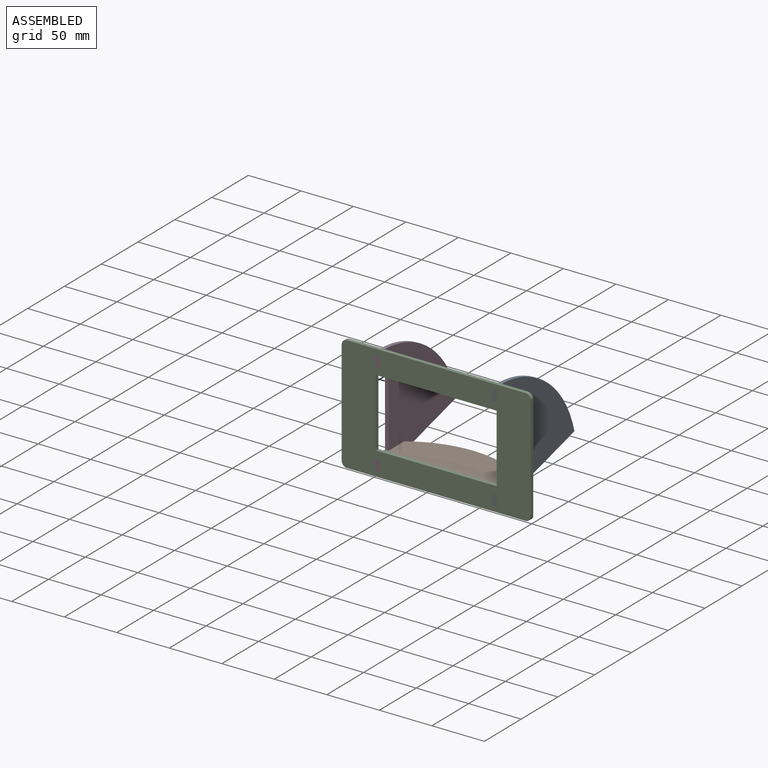
[diagram: assembled view]
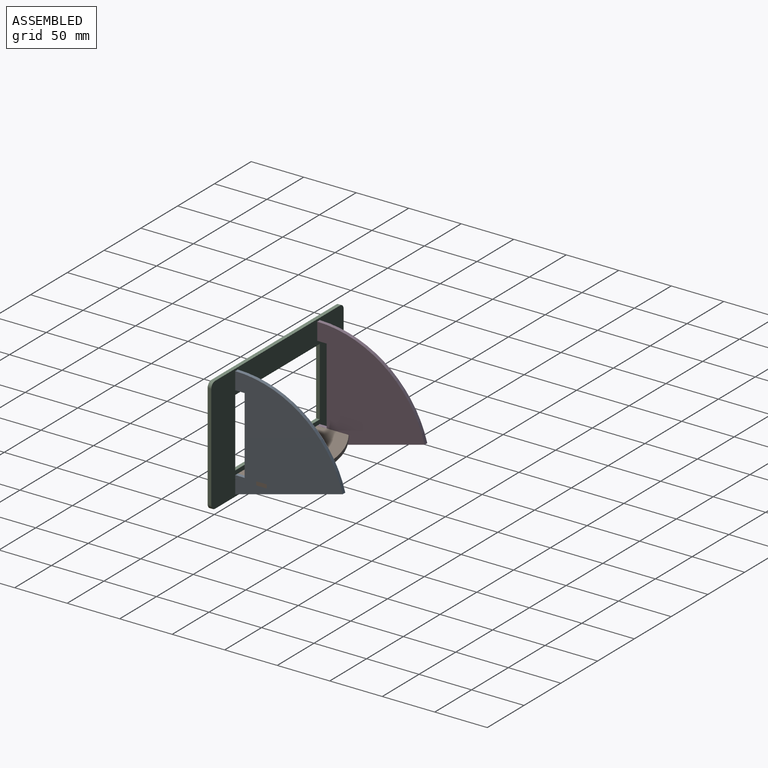
[diagram: assembled view, second angle]
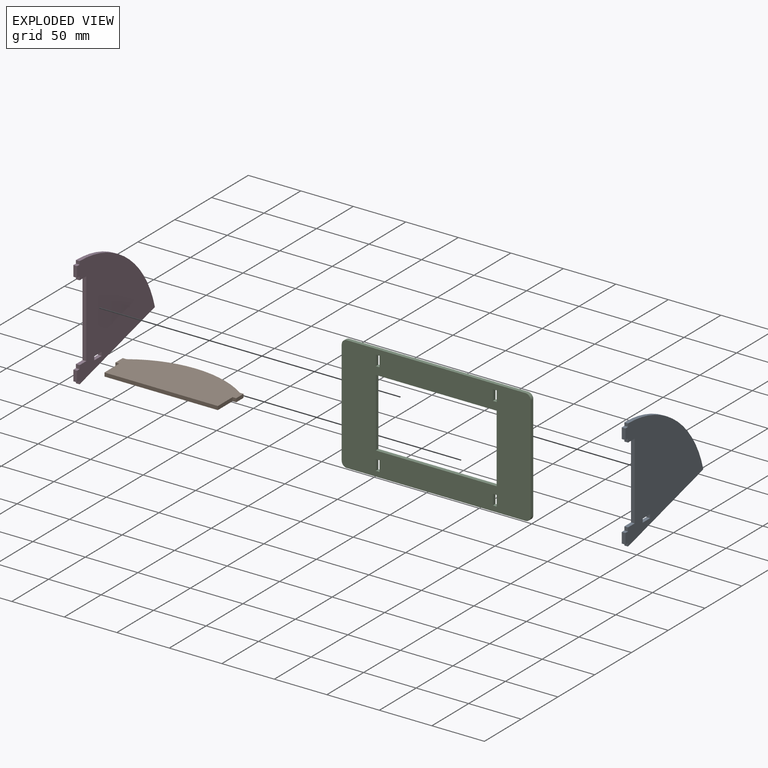
[diagram: exploded view]
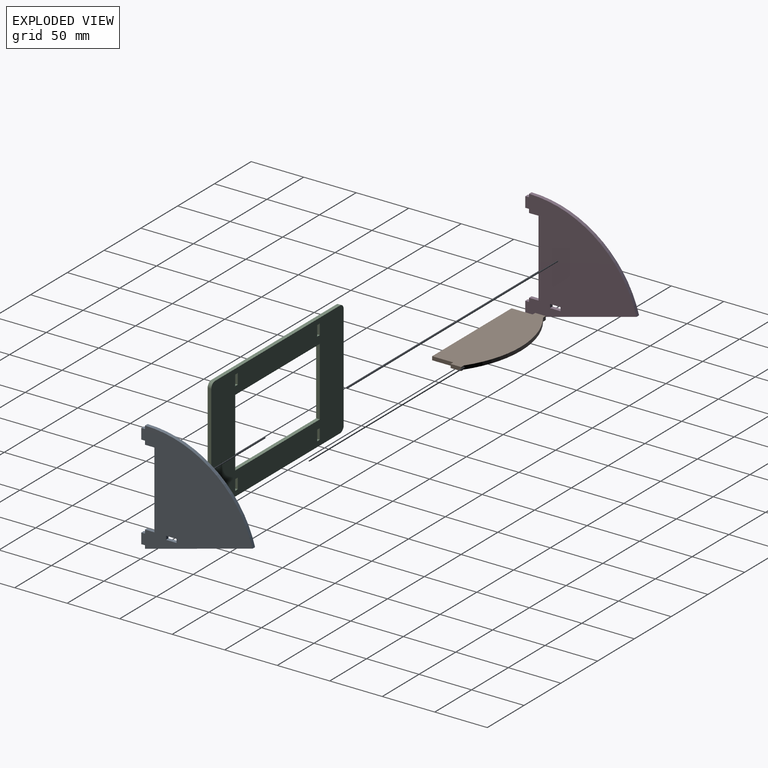
[diagram: exploded view, second angle]
ASSEMBLY  parts=4 mates=3
PART A: 21 faces, bbox 3.5x105.9x106 mm
  f0: plane 9x3.5mm, normal (0,0,-1), area 31.5mm2, adj f1,f18,f19,f20
  f1: plane 73x3.5mm, normal (0,-1,0), area 255.5mm2, adj f0,f2,f19,f20
  f2: plane 9x3.5mm, normal (0,0,1), area 31.5mm2, adj f1,f3,f19,f20
  f3: plane 3.5x3.5mm, normal (0,-1,0), area 12.3mm2, adj f2,f4,f19,f20
  f4: plane 3.5x3.5mm, normal (0,0,1), area 12.2mm2, adj f3,f5,f19,f20
  f5: plane 10x3.5mm, normal (0,-1,0), area 35mm2, adj f4,f6,f19,f20
  f6: plane 3.5x3.5mm, normal (0,0,-1), area 12.2mm2, adj f5,f7,f19,f20
  f7: plane 3.5x3mm, normal (0,-1,0), area 10.5mm2, adj f6,f8,f19,f20
  f8: plane 102.39x27.44mm, normal (0,0.26,-0.97), area 371mm2, adj f7,f9,f19,f20
  f9: cylinder r=106mm len=102.39mm, axis (-1,0,0), area 485.6mm2, adj f8,f10,f19,f20
  f10: plane 3.5x3mm, normal (0,-1,0), area 10.5mm2, adj f9,f11,f19,f20
  f11: plane 3.5x3.5mm, normal (0,0,1), area 12.2mm2, adj f10,f12,f19,f20
  f12: plane 10x3.5mm, normal (0,-1,0), area 35mm2, adj f11,f13,f19,f20
  f13: plane 3.5x3.5mm, normal (0,0,-1), area 12.2mm2, adj f12,f18,f19,f20
  f14: plane 3.5x3.5mm, normal (0,1,0), area 12.3mm2, adj f15,f17,f19,f20
  f15: plane 10x3.5mm, normal (0,0,-1), area 35mm2, adj f14,f16,f19,f20
  f16: plane 3.5x3.5mm, normal (0,-1,0), area 12.3mm2, adj f15,f17,f19,f20
  f17: plane 10x3.5mm, normal (0,0,1), area 35mm2, adj f14,f16,f19,f20
  f18: plane 3.5x3.5mm, normal (0,-1,0), area 12.2mm2, adj f0,f13,f19,f20
  f19: plane 106x105.89mm, normal (1,0,0), area 6731.9mm2, adj f0,f1,f2,f3,f4,f5,f6,f7
  f20: plane 106x105.89mm, normal (-1,0,0), area 6731.9mm2, adj f0,f1,f2,f3,f4,f5,f6,f7
PART B: 12 faces, bbox 115x46.8x3.5 mm
  f0: plane 10x3.5mm, normal (1,0,0), area 35mm2, adj f1,f9,f10,f11
  f1: plane 3.5x3.5mm, normal (0,1,0), area 12.3mm2, adj f0,f2,f10,f11
  f2: cylinder r=95.31mm len=107.95mm, axis (0,0,-1), area 401.6mm2, adj f1,f3,f10,f11
  f3: plane 3.55x3.5mm, normal (0,1,0), area 12.4mm2, adj f2,f4,f10,f11
  f4: plane 10x3.5mm, normal (-1,0,0), area 35mm2, adj f3,f5,f10,f11
  f5: plane 3.5x3.5mm, normal (0,-1,0), area 12.2mm2, adj f4,f6,f10,f11
  f6: plane 20x3.5mm, normal (-1,0,0), area 70mm2, adj f5,f7,f10,f11
  f7: plane 108x3.5mm, normal (0,-1,0), area 378mm2, adj f6,f8,f10,f11
  f8: plane 20x3.5mm, normal (1,0,0), area 70mm2, adj f7,f9,f10,f11
  f9: plane 3.5x3.5mm, normal (0,-1,0), area 12.3mm2, adj f0,f8,f10,f11
  f10: plane 115x46.76mm, normal (0,0,1), area 4538.7mm2, adj f0,f1,f2,f3,f4,f5,f6,f7
  f11: plane 115x46.76mm, normal (0,0,-1), area 4538.7mm2, adj f0,f1,f2,f3,f4,f5,f6,f7
PART C: 30 faces, bbox 180x3.5x110 mm
  f0: plane 100x3.5mm, normal (-1,0,0), area 350mm2, adj f1,f27,f28,f29
  f1: cylinder r=5mm len=5mm, axis (0,1,0), area 27.5mm2, adj f0,f2,f28,f29
  f2: plane 170x3.5mm, normal (0,0,-1), area 595mm2, adj f1,f3,f28,f29
  f3: cylinder r=5mm len=5mm, axis (0,1,0), area 27.5mm2, adj f2,f4,f28,f29
  f4: plane 100x3.5mm, normal (1,0,0), area 350mm2, adj f3,f5,f28,f29
  f5: cylinder r=5mm len=5mm, axis (0,1,0), area 27.5mm2, adj f4,f6,f28,f29
  f6: plane 170x3.5mm, normal (0,0,1), area 595mm2, adj f5,f27,f28,f29
  f7: plane 10x3.5mm, normal (-1,0,0), area 35mm2, adj f8,f22,f28,f29
  f8: plane 3.5x3.5mm, normal (0,0,1), area 12.3mm2, adj f7,f9,f28,f29
  f9: plane 10x3.5mm, normal (1,0,0), area 35mm2, adj f8,f22,f28,f29
  f10: plane 3.5x3.5mm, normal (0,0,1), area 12.3mm2, adj f11,f23,f28,f29
  f11: plane 10x3.5mm, normal (1,0,0), area 35mm2, adj f10,f12,f28,f29
  f12: plane 3.5x3.5mm, normal (0,0,-1), area 12.3mm2, adj f11,f23,f28,f29
  f13: plane 10x3.5mm, normal (1,0,0), area 35mm2, adj f14,f24,f28,f29
  f14: plane 3.5x3.5mm, normal (0,0,-1), area 12.3mm2, adj f13,f15,f28,f29
  f15: plane 10x3.5mm, normal (-1,0,0), area 35mm2, adj f14,f24,f28,f29
  f16: plane 3.5x3.5mm, normal (0,0,-1), area 12.3mm2, adj f17,f25,f28,f29
  f17: plane 10x3.5mm, normal (-1,0,0), area 35mm2, adj f16,f18,f28,f29
  f18: plane 3.5x3.5mm, normal (0,0,1), area 12.3mm2, adj f17,f25,f28,f29
  f19: plane 115x3.5mm, normal (0,0,-1), area 402.5mm2, adj f20,f26,f28,f29
  f20: plane 65x3.5mm, normal (-1,0,0), area 227.5mm2, adj f19,f21,f28,f29
  f21: plane 115x3.5mm, normal (0,0,1), area 402.5mm2, adj f20,f26,f28,f29
  f22: plane 3.5x3.5mm, normal (0,0,-1), area 12.3mm2, adj f7,f9,f28,f29
  f23: plane 10x3.5mm, normal (-1,0,0), area 35mm2, adj f10,f12,f28,f29
  f24: plane 3.5x3.5mm, normal (0,0,1), area 12.3mm2, adj f13,f15,f28,f29
  f25: plane 10x3.5mm, normal (1,0,0), area 35mm2, adj f16,f18,f28,f29
  f26: plane 65x3.5mm, normal (1,0,0), area 227.5mm2, adj f19,f21,f28,f29
  f27: cylinder r=5mm len=5mm, axis (0,1,0), area 27.5mm2, adj f0,f6,f28,f29
  f28: plane 180x110mm, normal (0,-1,0), area 12163.5mm2, adj f0,f1,f2,f3,f4,f5,f6,f7
  f29: plane 180x110mm, normal (0,1,0), area 12163.5mm2, adj f0,f1,f2,f3,f4,f5,f6,f7
PART D: same geometry as A
PLACE A t=(16.32,95.59,2.19)mm
PLACE B t=(-29.21,68.85,-42.96)mm
PLACE C t=(-37.68,48.85,-2.96)mm
PLACE D t=(-95.18,95.59,2.19)mm
MATE fastened B.f0 <-> A.f19  axis (1,0,0) through (19.82,78.85,-39.46)mm
MATE fastened A.f5 <-> C.f28  axis (0,-1,0) through (19.82,45.35,-42.96)mm
MATE fastened B.f4 <-> D.f20  axis (-1,0,0) through (-95.18,78.85,-39.46)mm
